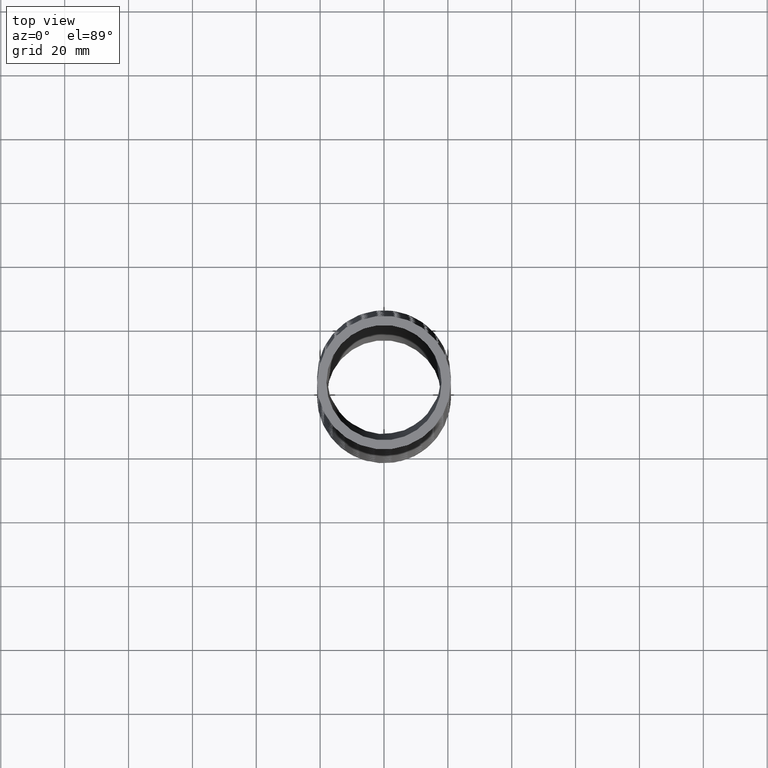
[diagram: clean part render]
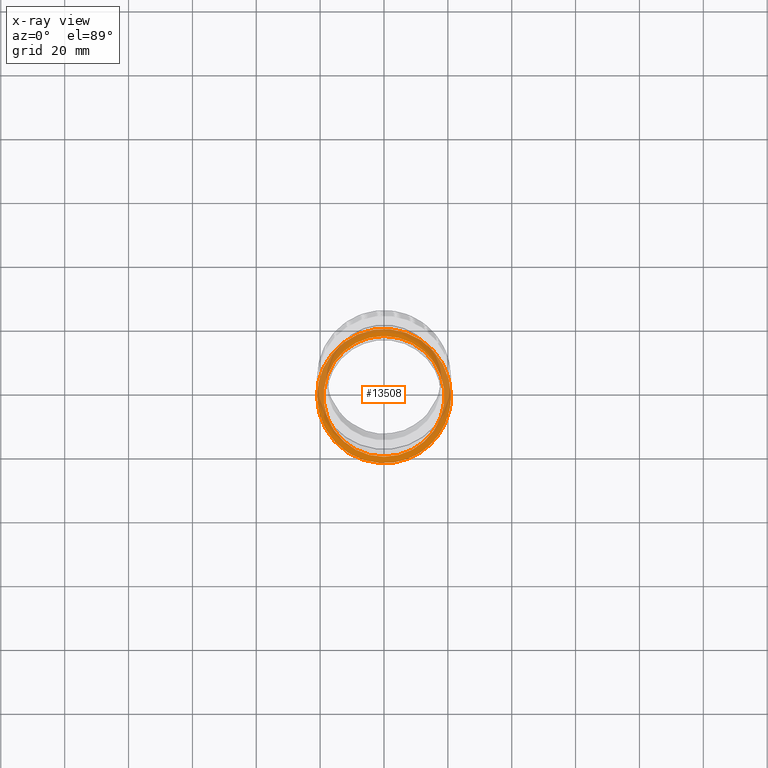
[diagram: x-ray — body ghosted, one internal face saturated and labeled with its STEP entity id]
A machine part, top view, then the same camera in x-ray: the body is ghosted and one INTERNAL B-rep face — a face not visible from any outside direction — is saturated and labeled: STEP entity #13508.
In plain terms, the highlighted planar face has unit normal (0, 0, -1).
Its self-contained STEP definition (entity closure, byte-faithful):
#61 = EDGE_CURVE ( 'NONE', #71, #67, #8379, .T. ) ;
#67 = VERTEX_POINT ( 'NONE', #8367 ) ;
#71 = VERTEX_POINT ( 'NONE', #8364 ) ;
#3446 = B_SPLINE_CURVE_WITH_KNOTS ( 'NONE', 3,
 ( #3535, #3534, #3533, #3532, #3531, #3530, #3529, #3528, #3527, #3526, #3525, #3524, #3523, #3522, #3521, #3520, #3519, #3518, #3517, #3516, #3515, #3514, #3513, #3512, #3511, #3510, #3509, #3508, #3507, #3506, #3505, #3504, #3503, #3502, #3501, #3500, #3499, #3498, #3497, #3496, #3495, #3494, #3493, #3492, #3491, #3490, #3489, #3488, #3487, #3486, #3567, #3566, #3565, #3564, #3563, #3562, #3561 ),
 .UNSPECIFIED., .F., .F.,
 ( 4, 2, 2, 1, 2, 2, 2, 2, 2, 2, 2, 2, 2, 2, 2, 2, 2, 2, 2, 2, 2, 2, 2, 2, 2, 2, 2, 2, 4 ),
 ( 0.06561303583584253400, 0.06971303511565171700, 0.07176303475555631500, 0.07381303439546091400, 0.07586303403536551200, 0.07688803385531782500, 0.07791303367527012400, 0.08201303295507932100, 0.08406303259498393300, 0.08508803241493624600, 0.08611303223488854500, 0.09021303151469778300, 0.09123803133465008300, 0.09226303115460238200, 0.09431303079450698000, 0.09841303007431619100, 0.1004630297142208000, 0.1025130293541254000, 0.1045630289940300000, 0.1066130286339346000, 0.1107130279137437900, 0.1127630275536483900, 0.1148130271935529900, 0.1189130264733622200, 0.1209630261132668100, 0.1230130257531714100, 0.1250630253930760100, 0.1271130250329806100, 0.1312130243127898300 ),
 .UNSPECIFIED. ) ;
#3486 = CARTESIAN_POINT ( 'NONE',  ( 0.7517612862760633100, -0.3613063071378663800, -8.452678838414852800 ) ) ;
#3487 = CARTESIAN_POINT ( 'NONE',  ( 0.7402648051563509600, -0.3856885052039248900, -8.452678838414851000 ) ) ;
#3488 = CARTESIAN_POINT ( 'NONE',  ( 0.7147966364128981500, -0.4334681139840518800, -8.452678838414849200 ) ) ;
#3489 = CARTESIAN_POINT ( 'NONE',  ( 0.7007391407061752700, -0.4569805859580625700, -8.452678838414852800 ) ) ;
#3490 = CARTESIAN_POINT ( 'NONE',  ( 0.6555886164041525600, -0.5246758009390567500, -8.452678838414854600 ) ) ;
#3491 = CARTESIAN_POINT ( 'NONE',  ( 0.6214679751755489700, -0.5663151874723301200, -8.452678838414845700 ) ) ;
#3492 = CARTESIAN_POINT ( 'NONE',  ( 0.5643481398266109200, -0.6236176357193743400, -8.452678838414845700 ) ) ;
#3493 = CARTESIAN_POINT ( 'NONE',  ( 0.5443114100527342000, -0.6418529591773410900, -8.452678838414849200 ) ) ;
#3494 = CARTESIAN_POINT ( 'NONE',  ( 0.5021713740973236000, -0.6765292299208696100, -8.452678838414849200 ) ) ;
#3495 = CARTESIAN_POINT ( 'NONE',  ( 0.4804072588000127800, -0.6926898628249683600, -8.452678838414849200 ) ) ;
#3496 = CARTESIAN_POINT ( 'NONE',  ( 0.4131666543945550200, -0.7377083666195927100, -8.452678838414849200 ) ) ;
#3497 = CARTESIAN_POINT ( 'NONE',  ( 0.3657319659583045900, -0.7631585773129367900, -8.452678838414852800 ) ) ;
#3498 = CARTESIAN_POINT ( 'NONE',  ( 0.2905986064364031200, -0.7943684153911645400, -8.452678838414852800 ) ) ;
#3499 = CARTESIAN_POINT ( 'NONE',  ( 0.2648056543302631500, -0.8036117436114409400, -8.452678838414845700 ) ) ;
#3500 = CARTESIAN_POINT ( 'NONE',  ( 0.2129877701141346700, -0.8193371267619337100, -8.452678838414847500 ) ) ;
#3501 = CARTESIAN_POINT ( 'NONE',  ( 0.1868358130670306800, -0.8258808188212677400, -8.452678838414852800 ) ) ;
#3502 = CARTESIAN_POINT ( 'NONE',  ( 0.1340546719176144200, -0.8363779825308986800, -8.452678838414852800 ) ) ;
#3503 = CARTESIAN_POINT ( 'NONE',  ( 0.1074254789561544700, -0.8403314060968639600, -8.452678838414845700 ) ) ;
#3504 = CARTESIAN_POINT ( 'NONE',  ( 0.05368476953004903300, -0.8456203710947584100, -8.452678838414845700 ) ) ;
#3505 = CARTESIAN_POINT ( 'NONE',  ( 0.02646815025527477600, -0.8469551714716091500, -8.452678838414845700 ) ) ;
#3506 = CARTESIAN_POINT ( 'NONE',  ( -0.05521592254321496000, -0.8468797017051454800, -8.452678838414845700 ) ) ;
#3507 = CARTESIAN_POINT ( 'NONE',  ( -0.1088322865032980000, -0.8414744121427374400, -8.452678838414854600 ) ) ;
#3508 = CARTESIAN_POINT ( 'NONE',  ( -0.1880390232818968400, -0.8256000622703376600, -8.452678838414851000 ) ) ;
#3509 = CARTESIAN_POINT ( 'NONE',  ( -0.2142368153969360900, -0.8190047375225644200, -8.452678838414852800 ) ) ;
#3510 = CARTESIAN_POINT ( 'NONE',  ( -0.2532185180556310600, -0.8071029722906075700, -8.452678838414852800 ) ) ;
#3511 = CARTESIAN_POINT ( 'NONE',  ( -0.2661926652453043300, -0.8027873317187731500, -8.452678838414849200 ) ) ;
#3512 = CARTESIAN_POINT ( 'NONE',  ( -0.2917797609786926300, -0.7935644118246439900, -8.452678838414851000 ) ) ;
#3513 = CARTESIAN_POINT ( 'NONE',  ( -0.3044119531444088300, -0.7886531854490621600, -8.452678838414843900 ) ) ;
#3514 = CARTESIAN_POINT ( 'NONE',  ( -0.3667810429785858300, -0.7626259165837074900, -8.452678838414845700 ) ) ;
#3515 = CARTESIAN_POINT ( 'NONE',  ( -0.4141648982202593700, -0.7371383946844151100, -8.452678838414856300 ) ) ;
#3516 = CARTESIAN_POINT ( 'NONE',  ( -0.4702608822201095300, -0.6994569572939385300, -8.452678838414854600 ) ) ;
#3517 = CARTESIAN_POINT ( 'NONE',  ( -0.4813219781903215200, -0.6916269502831804400, -8.452678838414852800 ) ) ;
#3518 = CARTESIAN_POINT ( 'NONE',  ( -0.5031223050708373300, -0.6753689757378813500, -8.452678838414852800 ) ) ;
#3519 = CARTESIAN_POINT ( 'NONE',  ( -0.5138773077335983000, -0.6669257303277632600, -8.452678838414854600 ) ) ;
#3520 = CARTESIAN_POINT ( 'NONE',  ( -0.5453071330054176700, -0.6409705037914058500, -8.452678838414851000 ) ) ;
#3521 = CARTESIAN_POINT ( 'NONE',  ( -0.5652607172912576000, -0.6227567963804386800, -8.452678838414845700 ) ) ;
#3522 = CARTESIAN_POINT ( 'NONE',  ( -0.6222063910836058700, -0.5654613266719238400, -8.452678838414845700 ) ) ;
#3523 = CARTESIAN_POINT ( 'NONE',  ( -0.6563113387841387200, -0.5237506553831984300, -8.452678838414851000 ) ) ;
#3524 = CARTESIAN_POINT ( 'NONE',  ( -0.6939712697786273300, -0.4670857033635010800, -8.452678838414849200 ) ) ;
#3525 = CARTESIAN_POINT ( 'NONE',  ( -0.7012517559058930600, -0.4555207020711346500, -8.452678838414849200 ) ) ;
#3526 = CARTESIAN_POINT ( 'NONE',  ( -0.7151487981812959500, -0.4321911687129442200, -8.452678838414849200 ) ) ;
#3527 = CARTESIAN_POINT ( 'NONE',  ( -0.7217871383867902100, -0.4203950546688016700, -8.452678838414849200 ) ) ;
#3528 = CARTESIAN_POINT ( 'NONE',  ( -0.7407872674735331800, -0.3846192980332313600, -8.452678838414847500 ) ) ;
#3529 = CARTESIAN_POINT ( 'NONE',  ( -0.7636853620234660400, -0.3358870046315846100, -8.452678838414856300 ) ) ;
#3530 = CARTESIAN_POINT ( 'NONE',  ( -0.7817711915215694900, -0.2851169382115612500, -8.452678838414849200 ) ) ;
#3531 = CARTESIAN_POINT ( 'NONE',  ( -0.7974106436976690100, -0.2333109434613521700, -8.452678838414851000 ) ) ;
#3532 = CARTESIAN_POINT ( 'NONE',  ( -0.8040305729221762800, -0.2067406596302411600, -8.452678838414843900 ) ) ;
#3533 = CARTESIAN_POINT ( 'NONE',  ( -0.8197979521777237800, -0.1268672117540548000, -8.452678838414843900 ) ) ;
#3534 = CARTESIAN_POINT ( 'NONE',  ( -0.8249999999999998400, -0.07328256804623414800, -8.452678838414845700 ) ) ;
#3535 = CARTESIAN_POINT ( 'NONE',  ( -0.8250000000000000700, -0.01936904162359057500, -8.452678838414849200 ) ) ;
#3559 = CARTESIAN_POINT ( 'NONE',  ( -0.8250000000000000700, -0.01936904162359057500, -8.452678838414849200 ) ) ;
#3561 = CARTESIAN_POINT ( 'NONE',  ( 0.8250000000000001800, -0.01936904162359084600, -8.452678838414849200 ) ) ;
#3562 = CARTESIAN_POINT ( 'NONE',  ( 0.8250000000000001800, -0.07394850050133734700, -8.452678838414849200 ) ) ;
#3563 = CARTESIAN_POINT ( 'NONE',  ( 0.8196691510033966600, -0.1279652428689745100, -8.452678838414852800 ) ) ;
#3564 = CARTESIAN_POINT ( 'NONE',  ( 0.8037070400857240200, -0.2081485590699897700, -8.452678838414851000 ) ) ;
#3565 = CARTESIAN_POINT ( 'NONE',  ( 0.7970761385703133400, -0.2345543257309841700, -8.452678838414849200 ) ) ;
#3566 = CARTESIAN_POINT ( 'NONE',  ( 0.7813932852432323700, -0.2862271267928764300, -8.452678838414852800 ) ) ;
#3567 = CARTESIAN_POINT ( 'NONE',  ( 0.7723255531828545600, -0.3115756286202137600, -8.452678838414849200 ) ) ;
#3715 = CARTESIAN_POINT ( 'NONE',  ( -0.7830461447698007200, 0.2467492010430063800, -8.452678838414845700 ) ) ;
#3716 = CARTESIAN_POINT ( 'NONE',  ( -0.7520645927276374800, 0.3219027025218705900, -8.452678838414845700 ) ) ;
#3717 = CARTESIAN_POINT ( 'NONE',  ( -0.7403857091902599200, 0.3466971073681107700, -8.452678838414849200 ) ) ;
#3718 = CARTESIAN_POINT ( 'NONE',  ( -0.7148960026276279800, 0.3945468945966013100, -8.452678838414849200 ) ) ;
#3719 = CARTESIAN_POINT ( 'NONE',  ( -0.7010552079168356200, 0.4177057377746608600, -8.452678838414849200 ) ) ;
#3720 = CARTESIAN_POINT ( 'NONE',  ( -0.6563110222130202900, 0.4849302651190245900, -8.452678838414849200 ) ) ;
#3721 = CARTESIAN_POINT ( 'NONE',  ( -0.6221537527844288600, 0.5268303745096892800, -8.452678838414856300 ) ) ;
#3722 = CARTESIAN_POINT ( 'NONE',  ( -0.5451695395351838800, 0.6041264853819402500, -8.452678838414854600 ) ) ;
#3723 = CARTESIAN_POINT ( 'NONE',  ( -0.5035088426501531700, 0.6383762164419765100, -8.452678838414852800 ) ) ;
#3724 = CARTESIAN_POINT ( 'NONE',  ( -0.4364362765749553200, 0.6833911979578630700, -8.452678838414849200 ) ) ;
#3725 = CARTESIAN_POINT ( 'NONE',  ( -0.4133095500206120900, 0.6973284579611672700, -8.452678838414843900 ) ) ;
#3726 = CARTESIAN_POINT ( 'NONE',  ( -0.3654785370744433900, 0.7230131650485608400, -8.452678838414847500 ) ) ;
#3727 = CARTESIAN_POINT ( 'NONE',  ( -0.3407346864067910500, 0.7347579379091597800, -8.452678838414849200 ) ) ;
#3728 = CARTESIAN_POINT ( 'NONE',  ( -0.2657587075229602100, 0.7659104563726960600, -8.452678838414849200 ) ) ;
#3729 = CARTESIAN_POINT ( 'NONE',  ( -0.2142681921884066200, 0.7815820383117982900, -8.452678838414851000 ) ) ;
#3730 = CARTESIAN_POINT ( 'NONE',  ( -0.1480291586401292500, 0.7948251644281093500, -8.452678838414852800 ) ) ;
#3731 = CARTESIAN_POINT ( 'NONE',  ( -0.1346867121154730300, 0.7971536121824569500, -8.452678838414849200 ) ) ;
#3732 = CARTESIAN_POINT ( 'NONE',  ( -0.1078092496652768400, 0.8011590230769375400, -8.452678838414852800 ) ) ;
#3733 = CARTESIAN_POINT ( 'NONE',  ( -0.09423789493569513500, 0.8028385972407777700, -8.452678838414843900 ) ) ;
#3734 = CARTESIAN_POINT ( 'NONE',  ( -0.05362268712992444800, 0.8068425553937712500, -8.452678838414843900 ) ) ;
#3735 = CARTESIAN_POINT ( 'NONE',  ( -0.02661408581003343900, 0.8081521634767361300, -8.452678838414849200 ) ) ;
#3736 = CARTESIAN_POINT ( 'NONE',  ( 0.05421302595048507800, 0.8081199045518541200, -8.452678838414852800 ) ) ;
#3737 = CARTESIAN_POINT ( 'NONE',  ( 0.1078347493330492200, 0.8028549348362423700, -8.452678838414849200 ) ) ;
#3738 = CARTESIAN_POINT ( 'NONE',  ( 0.1745236164261476700, 0.7895297061451321800, -8.452678838414851000 ) ) ;
#3739 = CARTESIAN_POINT ( 'NONE',  ( 0.1878639174085990100, 0.7865175800375856500, -8.452678838414845700 ) ) ;
#3740 = CARTESIAN_POINT ( 'NONE',  ( 0.2142185729477448800, 0.7798758711718263300, -8.452678838414847500 ) ) ;
#3741 = CARTESIAN_POINT ( 'NONE',  ( 0.2272672895412118100, 0.7762405384809201200, -8.452678838414847500 ) ) ;
#3742 = CARTESIAN_POINT ( 'NONE',  ( 0.2660343321019000800, 0.7644075527103174600, -8.452678838414847500 ) ) ;
#3743 = CARTESIAN_POINT ( 'NONE',  ( 0.3167145551885352500, 0.7461626372589322800, -8.452678838414843900 ) ) ;
#3744 = CARTESIAN_POINT ( 'NONE',  ( 0.3654029310417871200, 0.7230472846715611000, -8.452678838414845700 ) ) ;
#3745 = CARTESIAN_POINT ( 'NONE',  ( 0.4130796860426355100, 0.6974583308538798700, -8.452678838414845700 ) ) ;
#3746 = CARTESIAN_POINT ( 'NONE',  ( 0.4365376356610256000, 0.6833366715316955300, -8.452678838414845700 ) ) ;
#3747 = CARTESIAN_POINT ( 'NONE',  ( 0.5041595149374178400, 0.6379122689656754300, -8.452678838414843900 ) ) ;
#3748 = CARTESIAN_POINT ( 'NONE',  ( 0.5456794282534495100, 0.6036223099313110500, -8.452678838414852800 ) ) ;
#3749 = CARTESIAN_POINT ( 'NONE',  ( 0.6027418689264721900, 0.5463170059814910200, -8.452678838414849200 ) ) ;
#3750 = CARTESIAN_POINT ( 'NONE',  ( 0.6208868910014365700, 0.5262298454380938100, -8.452678838414845700 ) ) ;
#3751 = CARTESIAN_POINT ( 'NONE',  ( 0.6553688794649997800, 0.4840211992216209600, -8.452678838414845700 ) ) ;
#3752 = CARTESIAN_POINT ( 'NONE',  ( 0.6715161947110717100, 0.4621190918538815000, -8.452678838414852800 ) ) ;
#3753 = CARTESIAN_POINT ( 'NONE',  ( 0.7163410307110228400, 0.3946722067784421700, -8.452678838414851000 ) ) ;
#3754 = CARTESIAN_POINT ( 'NONE',  ( 0.7416330985052522800, 0.3471630467272345800, -8.452678838414845700 ) ) ;
#3755 = CARTESIAN_POINT ( 'NONE',  ( 0.7726251919424345100, 0.2720496000759532500, -8.452678838414845700 ) ) ;
#3756 = CARTESIAN_POINT ( 'NONE',  ( 0.7818205203443946400, 0.2462336989914526400, -8.452678838414852800 ) ) ;
#3757 = CARTESIAN_POINT ( 'NONE',  ( 0.7974821329925785300, 0.1943088763750147300, -8.452678838414851000 ) ) ;
#3758 = CARTESIAN_POINT ( 'NONE',  ( 0.8039949174313967300, 0.1681221473993020100, -8.452678838414851000 ) ) ;
#3759 = CARTESIAN_POINT ( 'NONE',  ( 0.8196676863734729800, 0.08890406633546878200, -8.452678838414849200 ) ) ;
#3760 = CARTESIAN_POINT ( 'NONE',  ( 0.8250000000000004000, 0.03522127271015237200, -8.452678838414845700 ) ) ;
#3761 = CARTESIAN_POINT ( 'NONE',  ( 0.8250000000000001800, -0.01936904162359084600, -8.452678838414849200 ) ) ;
#3762 = B_SPLINE_CURVE_WITH_KNOTS ( 'NONE', 3,
 ( #3761, #3760, #3759, #3758, #3757, #3756, #3755, #3754, #3753, #3752, #3751, #3750, #3749, #3748, #3747, #3746, #3745, #3744, #3743, #3742, #3741, #3740, #3739, #3738, #3737, #3736, #3735, #3734, #3733, #3732, #3731, #3730, #3729, #3728, #3727, #3726, #3725, #3724, #3723, #3722, #3721, #3720, #3719, #3718, #3717, #3716, #3715, #3807, #3806, #3805, #3804, #3803, #3802 ),
 .UNSPECIFIED., .F., .F.,
 ( 4, 2, 2, 2, 2, 2, 2, 2, 2, 1, 2, 2, 2, 2, 2, 2, 2, 2, 2, 2, 2, 2, 2, 2, 2, 2, 4 ),
 ( 0.0000000000000000000, 0.004100814739740169700, 0.006151222109610253600, 0.008201629479480339300, 0.01230244421922050700, 0.01435285158909059200, 0.01640325895896067900, 0.02050407369870083400, 0.02255448106857091400, 0.02460488843844099700, 0.02665529580831107300, 0.02768049949324611100, 0.02870570317818115300, 0.03280651791792130900, 0.03485692528779139900, 0.03588212897272644000, 0.03690733265766147500, 0.04100814739740163400, 0.04305855476727170300, 0.04510896213714177300, 0.04920977687688192500, 0.05331059161662206300, 0.05536099898649214600, 0.05741140635636222300, 0.06151222109610237500, 0.06356262846597245100, 0.06561303583584253400 ),
 .UNSPECIFIED. ) ;
#3802 = CARTESIAN_POINT ( 'NONE',  ( -0.8250000000000000700, -0.01936904162359057500, -8.452678838414849200 ) ) ;
#3803 = CARTESIAN_POINT ( 'NONE',  ( -0.8250000000000000700, 0.007593083091177145300, -8.452678838414849200 ) ) ;
#3804 = CARTESIAN_POINT ( 'NONE',  ( -0.8236897502488118600, 0.03463804412540814900, -8.452678838414849200 ) ) ;
#3805 = CARTESIAN_POINT ( 'NONE',  ( -0.8183602935465803500, 0.08889923128574564500, -8.452678838414849200 ) ) ;
#3806 = CARTESIAN_POINT ( 'NONE',  ( -0.8143666264169942000, 0.1157912191908749700, -8.452678838414843900 ) ) ;
#3807 = CARTESIAN_POINT ( 'NONE',  ( -0.7985975189031497800, 0.1952145561875726600, -8.452678838414842100 ) ) ;
#4279 = CARTESIAN_POINT ( 'NONE',  ( 0.8250000000000001800, -0.01936904162359084600, -8.452678838414849200 ) ) ;
#8364 = CARTESIAN_POINT ( 'NONE',  ( 0.0000000000000000000, -0.7676871320376903500, -8.452678838414849200 ) ) ;
#8367 = CARTESIAN_POINT ( 'NONE',  ( 9.123618653647779700E-017, 0.7223128679623093100, -8.452678838414849200 ) ) ;
#8375 = DIRECTION ( 'NONE',  ( 0.0000000000000000000, -1.000000000000000000, 0.0000000000000000000 ) ) ;
#8376 = DIRECTION ( 'NONE',  ( 0.0000000000000000000, -1.734723475976807100E-018, 1.000000000000000000 ) ) ;
#8377 = CARTESIAN_POINT ( 'NONE',  ( 0.0000000000000000000, -0.02268713203769050900, -8.452678838414849200 ) ) ;
#8378 = AXIS2_PLACEMENT_3D ( 'NONE', #8377, #8376, #8375 ) ;
#8379 = CIRCLE ( 'NONE', #8378, 0.7449999999999998800 ) ;
#13488 = ORIENTED_EDGE ( 'NONE', *, *, #14287, .F. ) ;
#13494 = EDGE_LOOP ( 'NONE', ( #13495, #13498 ) ) ;
#13495 = ORIENTED_EDGE ( 'NONE', *, *, #61, .T. ) ;
#13496 = EDGE_CURVE ( 'NONE', #67, #71, #19119, .T. ) ;
#13498 = ORIENTED_EDGE ( 'NONE', *, *, #13496, .T. ) ;
#13508 = ADVANCED_FACE ( 'NONE', ( #19147, #19146 ), #19183, .T. ) ;
#13509 = EDGE_LOOP ( 'NONE', ( #13510, #13488 ) ) ;
#13510 = ORIENTED_EDGE ( 'NONE', *, *, #14305, .F. ) ;
#14287 = EDGE_CURVE ( 'NONE', #14290, #14385, #3446, .T. ) ;
#14290 = VERTEX_POINT ( 'NONE', #3559 ) ;
#14305 = EDGE_CURVE ( 'NONE', #14385, #14290, #3762, .T. ) ;
#14385 = VERTEX_POINT ( 'NONE', #4279 ) ;
#19115 = DIRECTION ( 'NONE',  ( 0.0000000000000000000, -1.000000000000000000, 0.0000000000000000000 ) ) ;
#19116 = DIRECTION ( 'NONE',  ( 0.0000000000000000000, -1.734723475976807100E-018, 1.000000000000000000 ) ) ;
#19117 = CARTESIAN_POINT ( 'NONE',  ( 0.0000000000000000000, -0.02268713203769050900, -8.452678838414849200 ) ) ;
#19118 = AXIS2_PLACEMENT_3D ( 'NONE', #19117, #19116, #19115 ) ;
#19119 = CIRCLE ( 'NONE', #19118, 0.7449999999999998800 ) ;
#19146 = FACE_BOUND ( 'NONE', #13494, .T. ) ;
#19147 = FACE_OUTER_BOUND ( 'NONE', #13509, .T. ) ;
#19179 = DIRECTION ( 'NONE',  ( 0.0000000000000000000, 1.000000000000000000, 1.734723475976807100E-018 ) ) ;
#19180 = DIRECTION ( 'NONE',  ( 0.0000000000000000000, 1.734723475976807100E-018, -1.000000000000000000 ) ) ;
#19181 = CARTESIAN_POINT ( 'NONE',  ( 0.0000000000000000000, 0.8223128679623094000, -8.452678838414849200 ) ) ;
#19182 = AXIS2_PLACEMENT_3D ( 'NONE', #19181, #19180, #19179 ) ;
#19183 = PLANE ( 'NONE',  #19182 ) ;